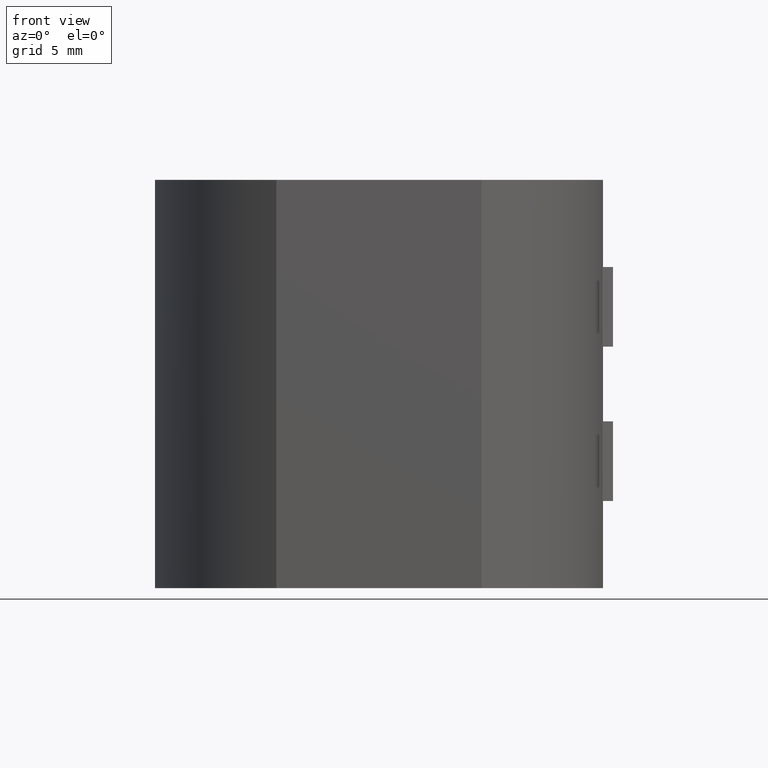
[diagram: clean part render]
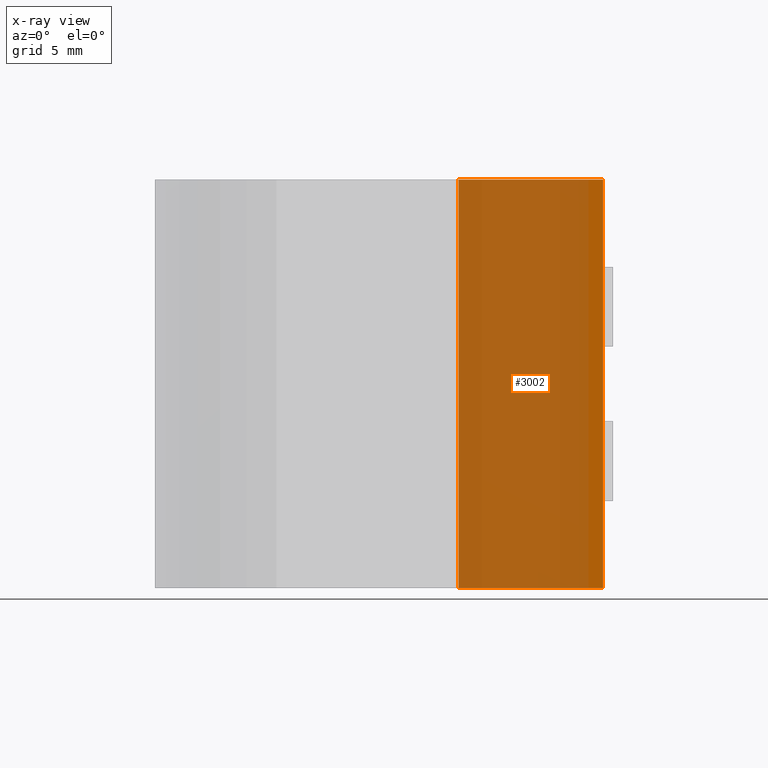
[diagram: x-ray — body ghosted, one internal face saturated and labeled with its STEP entity id]
A machine part, front view, then the same camera in x-ray: the body is ghosted and one INTERNAL B-rep face — a face not visible from any outside direction — is saturated and labeled: STEP entity #3002.
In plain terms, the highlighted planar face has unit normal (-0, 1, 0).
Its self-contained STEP definition (entity closure, byte-faithful):
#10 = DIRECTION ( 'NONE',  ( -0.0000000000000000000, -0.0000000000000000000, 1.000000000000000000 ) ) ;
#11 = LINE ( 'NONE', #2672, #288 ) ;
#93 = EDGE_CURVE ( 'NONE', #839, #483, #1828, .T. ) ;
#288 = VECTOR ( 'NONE', #2915, 1000.000000000000000 ) ;
#312 = FACE_OUTER_BOUND ( 'NONE', #364, .T. ) ;
#364 = EDGE_LOOP ( 'NONE', ( #1681, #1809, #554, #2927 ) ) ;
#440 = CARTESIAN_POINT ( 'NONE',  ( 11.25000000000000400, 0.01000000000000000000, -10.25000000000000000 ) ) ;
#483 = VERTEX_POINT ( 'NONE', #2820 ) ;
#554 = ORIENTED_EDGE ( 'NONE', *, *, #1201, .T. ) ;
#581 = VECTOR ( 'NONE', #942, 1000.000000000000000 ) ;
#663 = CARTESIAN_POINT ( 'NONE',  ( 3.999987499980468500, 0.009999999999999113800, -10.25000000000000000 ) ) ;
#741 = EDGE_CURVE ( 'NONE', #1893, #839, #11, .T. ) ;
#839 = VERTEX_POINT ( 'NONE', #1686 ) ;
#942 = DIRECTION ( 'NONE',  ( -0.0000000000000000000, -0.0000000000000000000, 1.000000000000000000 ) ) ;
#950 = LINE ( 'NONE', #2115, #581 ) ;
#1162 = PLANE ( 'NONE',  #2972 ) ;
#1201 = EDGE_CURVE ( 'NONE', #1303, #483, #1382, .T. ) ;
#1303 = VERTEX_POINT ( 'NONE', #2719 ) ;
#1382 = LINE ( 'NONE', #2073, #2863 ) ;
#1641 = CARTESIAN_POINT ( 'NONE',  ( 11.25000000000000400, 0.01000000000000000000, -10.25000000000000000 ) ) ;
#1681 = ORIENTED_EDGE ( 'NONE', *, *, #741, .F. ) ;
#1686 = CARTESIAN_POINT ( 'NONE',  ( 3.999987499980468500, 0.009999999999999113800, -10.25000000000000000 ) ) ;
#1809 = ORIENTED_EDGE ( 'NONE', *, *, #1830, .T. ) ;
#1828 = LINE ( 'NONE', #663, #2634 ) ;
#1830 = EDGE_CURVE ( 'NONE', #1893, #1303, #950, .T. ) ;
#1893 = VERTEX_POINT ( 'NONE', #1641 ) ;
#2073 = CARTESIAN_POINT ( 'NONE',  ( 11.25000000000000400, 0.01000000000000000000, 10.25000000000000000 ) ) ;
#2097 = DIRECTION ( 'NONE',  ( -1.000000000000000000, -1.224244953098215300E-016, 0.0000000000000000000 ) ) ;
#2115 = CARTESIAN_POINT ( 'NONE',  ( 11.25000000000000400, 0.01000000000000000000, -10.25000000000000000 ) ) ;
#2321 = DIRECTION ( 'NONE',  ( -1.000000000000000000, -1.224244953098215300E-016, 0.0000000000000000000 ) ) ;
#2634 = VECTOR ( 'NONE', #10, 1000.000000000000000 ) ;
#2672 = CARTESIAN_POINT ( 'NONE',  ( 11.25000000000000400, 0.01000000000000000000, -10.25000000000000000 ) ) ;
#2719 = CARTESIAN_POINT ( 'NONE',  ( 11.25000000000000400, 0.01000000000000000000, 10.25000000000000000 ) ) ;
#2820 = CARTESIAN_POINT ( 'NONE',  ( 3.999987499980468500, 0.009999999999999113800, 10.25000000000000000 ) ) ;
#2863 = VECTOR ( 'NONE', #2321, 1000.000000000000000 ) ;
#2915 = DIRECTION ( 'NONE',  ( -1.000000000000000000, -1.224244953098215300E-016, 0.0000000000000000000 ) ) ;
#2927 = ORIENTED_EDGE ( 'NONE', *, *, #93, .F. ) ;
#2972 = AXIS2_PLACEMENT_3D ( 'NONE', #440, #3046, #2097 ) ;
#3002 = ADVANCED_FACE ( 'NONE', ( #312 ), #1162, .F. ) ;
#3046 = DIRECTION ( 'NONE',  ( -1.224244953098215300E-016, 1.000000000000000000, 0.0000000000000000000 ) ) ;